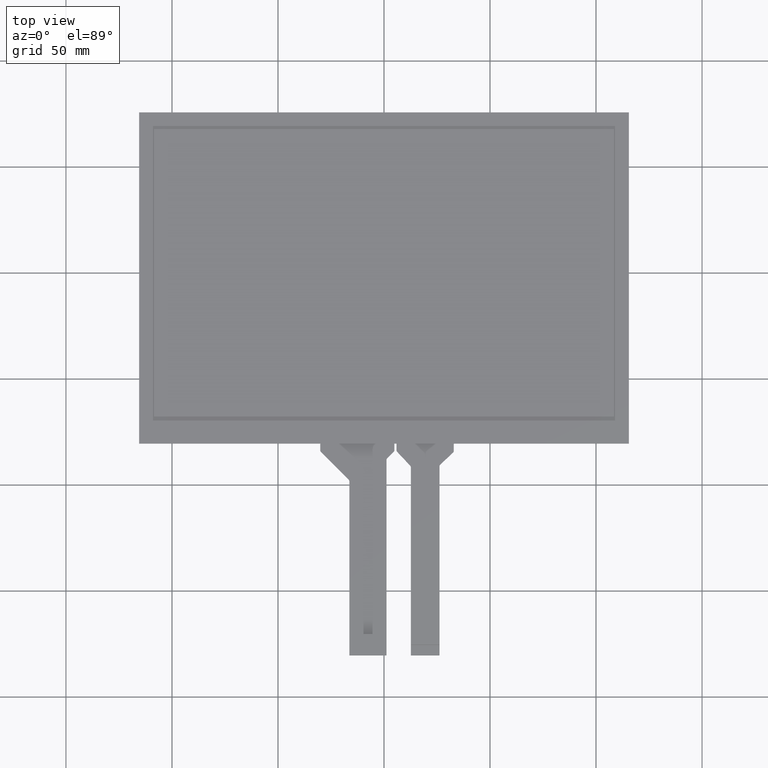
[diagram: clean part render]
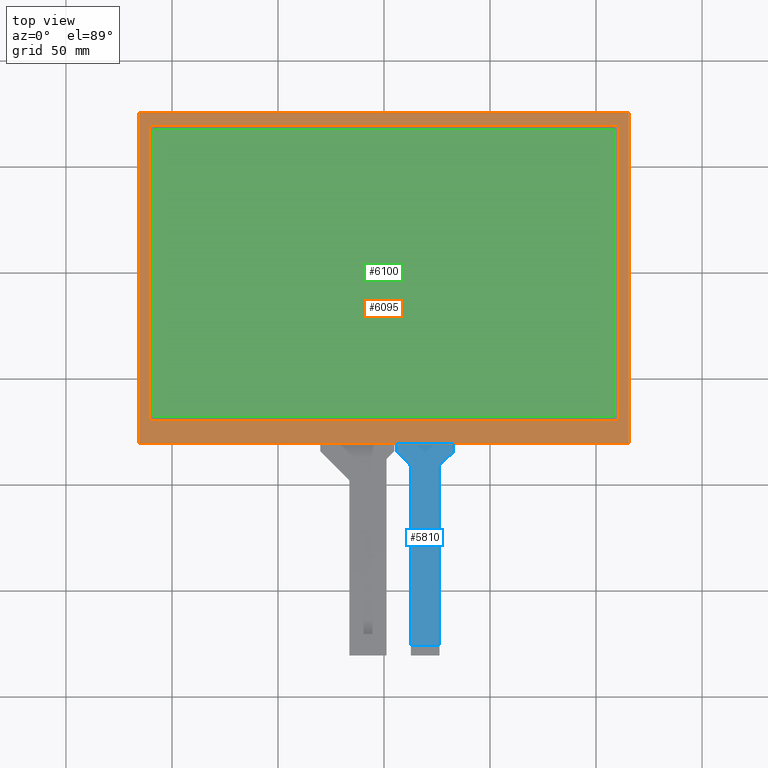
[diagram: same view with three faces highlighted in distinct colors, each labeled with its STEP entity id]
A machine part, top view with three faces highlighted in distinct colors.
Their STEP definitions:

[orange] entity #6095 — the highlighted planar face has unit normal (0, 0, 1).
#47=FACE_BOUND('',#915,.T.);
#325=PLANE('',#6433);
#619=FACE_OUTER_BOUND('',#914,.T.);
#914=EDGE_LOOP('',(#5756,#5757,#5758,#5759));
#915=EDGE_LOOP('',(#5760,#5761,#5762,#5763));
#1740=LINE('',#9604,#2580);
#1744=LINE('',#9612,#2584);
#1747=LINE('',#9618,#2587);
#1750=LINE('',#9623,#2590);
#1752=LINE('',#9629,#2592);
#1753=LINE('',#9631,#2593);
#1754=LINE('',#9633,#2594);
#1755=LINE('',#9634,#2595);
#2580=VECTOR('',#7872,10.);
#2584=VECTOR('',#7878,10.);
#2587=VECTOR('',#7883,10.);
#2590=VECTOR('',#7888,10.);
#2592=VECTOR('',#7894,10.);
#2593=VECTOR('',#7895,10.);
#2594=VECTOR('',#7896,10.);
#2595=VECTOR('',#7897,10.);
#3188=VERTEX_POINT('',#9602);
#3189=VERTEX_POINT('',#9603);
#3192=VERTEX_POINT('',#9611);
#3194=VERTEX_POINT('',#9617);
#3196=VERTEX_POINT('',#9627);
#3197=VERTEX_POINT('',#9628);
#3198=VERTEX_POINT('',#9630);
#3199=VERTEX_POINT('',#9632);
#4044=EDGE_CURVE('',#3188,#3189,#1740,.T.);
#4048=EDGE_CURVE('',#3192,#3188,#1744,.T.);
#4051=EDGE_CURVE('',#3194,#3192,#1747,.T.);
#4054=EDGE_CURVE('',#3189,#3194,#1750,.T.);
#4056=EDGE_CURVE('',#3196,#3197,#1752,.T.);
#4057=EDGE_CURVE('',#3197,#3198,#1753,.T.);
#4058=EDGE_CURVE('',#3198,#3199,#1754,.T.);
#4059=EDGE_CURVE('',#3199,#3196,#1755,.T.);
#5756=ORIENTED_EDGE('',*,*,#4056,.T.);
#5757=ORIENTED_EDGE('',*,*,#4057,.T.);
#5758=ORIENTED_EDGE('',*,*,#4058,.T.);
#5759=ORIENTED_EDGE('',*,*,#4059,.T.);
#5760=ORIENTED_EDGE('',*,*,#4044,.T.);
#5761=ORIENTED_EDGE('',*,*,#4054,.T.);
#5762=ORIENTED_EDGE('',*,*,#4051,.T.);
#5763=ORIENTED_EDGE('',*,*,#4048,.T.);
#6095=ADVANCED_FACE('',(#619,#47),#325,.T.);
#6433=AXIS2_PLACEMENT_3D('',#9626,#7892,#7893);
#7872=DIRECTION('',(-2.54492383868231E-16,1.,0.));
#7878=DIRECTION('',(-1.,-1.60756275058846E-16,0.));
#7883=DIRECTION('',(-1.27246191934115E-16,-1.,0.));
#7888=DIRECTION('',(1.,4.01890687647115E-17,0.));
#7892=DIRECTION('center_axis',(0.,0.,1.));
#7893=DIRECTION('ref_axis',(1.,0.,0.));
#7894=DIRECTION('',(-1.,0.,0.));
#7895=DIRECTION('',(2.27446458309891E-16,-1.,0.));
#7896=DIRECTION('',(1.,1.53797128952403E-16,0.));
#7897=DIRECTION('',(0.,1.,0.));
#9602=CARTESIAN_POINT('',(-110.5,-69.8,0.));
#9603=CARTESIAN_POINT('',(-110.5,69.8,0.));
#9604=CARTESIAN_POINT('',(-110.5,-36.1,0.));
#9611=CARTESIAN_POINT('',(110.5,-69.8,0.));
#9612=CARTESIAN_POINT('',(55.25,-69.8,0.));
#9617=CARTESIAN_POINT('',(110.5,69.8000000000001,0.));
#9618=CARTESIAN_POINT('',(110.5,33.7,0.));
#9623=CARTESIAN_POINT('',(-55.25,69.8,0.));
#9626=CARTESIAN_POINT('Origin',(-1.77635683940025E-14,-2.39999999999996,
0.));
#9627=CARTESIAN_POINT('',(115.5,75.7000000000001,0.));
#9628=CARTESIAN_POINT('',(-115.5,75.7000000000001,0.));
#9629=CARTESIAN_POINT('',(115.5,75.7000000000001,0.));
#9630=CARTESIAN_POINT('',(-115.5,-80.5,0.));
#9631=CARTESIAN_POINT('',(-115.5,75.7000000000001,0.));
#9632=CARTESIAN_POINT('',(115.5,-80.4999999999999,0.));
#9633=CARTESIAN_POINT('',(-115.5,-80.5,0.));
#9634=CARTESIAN_POINT('',(115.5,-80.4999999999999,0.));

[blue] entity #5810 — the highlighted planar face has unit normal (0, 0, 1).
#51=PLANE('',#6126);
#334=FACE_OUTER_BOUND('',#628,.T.);
#628=EDGE_LOOP('',(#4076,#4077,#4078,#4079,#4080,#4081,#4082,#4083,#4084,
#4085,#4086,#4087));
#926=LINE('',#7930,#1766);
#929=LINE('',#7936,#1769);
#930=LINE('',#7938,#1770);
#931=LINE('',#7940,#1771);
#932=LINE('',#7944,#1772);
#933=LINE('',#7948,#1773);
#934=LINE('',#7950,#1774);
#935=LINE('',#7952,#1775);
#1766=VECTOR('',#6452,10.);
#1769=VECTOR('',#6457,10.);
#1770=VECTOR('',#6458,10.);
#1771=VECTOR('',#6459,10.);
#1772=VECTOR('',#6462,10.);
#1773=VECTOR('',#6465,10.);
#1774=VECTOR('',#6466,10.);
#1775=VECTOR('',#6467,10.);
#2605=CIRCLE('',#6124,1.);
#2606=CIRCLE('',#6127,1.);
#2607=CIRCLE('',#6128,1.);
#2608=CIRCLE('',#6129,1.);
#2630=VERTEX_POINT('',#7923);
#2631=VERTEX_POINT('',#7925);
#2632=VERTEX_POINT('',#7929);
#2634=VERTEX_POINT('',#7935);
#2635=VERTEX_POINT('',#7937);
#2636=VERTEX_POINT('',#7939);
#2637=VERTEX_POINT('',#7941);
#2638=VERTEX_POINT('',#7943);
#2639=VERTEX_POINT('',#7945);
#2640=VERTEX_POINT('',#7947);
#2641=VERTEX_POINT('',#7949);
#2642=VERTEX_POINT('',#7951);
#3206=EDGE_CURVE('',#2630,#2631,#2605,.T.);
#3208=EDGE_CURVE('',#2632,#2631,#926,.T.);
#3211=EDGE_CURVE('',#2630,#2634,#929,.T.);
#3212=EDGE_CURVE('',#2635,#2634,#930,.T.);
#3213=EDGE_CURVE('',#2635,#2636,#931,.T.);
#3214=EDGE_CURVE('',#2637,#2636,#2606,.T.);
#3215=EDGE_CURVE('',#2637,#2638,#932,.T.);
#3216=EDGE_CURVE('',#2639,#2638,#2607,.T.);
#3217=EDGE_CURVE('',#2639,#2640,#933,.T.);
#3218=EDGE_CURVE('',#2640,#2641,#934,.T.);
#3219=EDGE_CURVE('',#2641,#2642,#935,.T.);
#3220=EDGE_CURVE('',#2632,#2642,#2608,.T.);
#4076=ORIENTED_EDGE('',*,*,#3206,.F.);
#4077=ORIENTED_EDGE('',*,*,#3211,.T.);
#4078=ORIENTED_EDGE('',*,*,#3212,.F.);
#4079=ORIENTED_EDGE('',*,*,#3213,.T.);
#4080=ORIENTED_EDGE('',*,*,#3214,.F.);
#4081=ORIENTED_EDGE('',*,*,#3215,.T.);
#4082=ORIENTED_EDGE('',*,*,#3216,.F.);
#4083=ORIENTED_EDGE('',*,*,#3217,.T.);
#4084=ORIENTED_EDGE('',*,*,#3218,.T.);
#4085=ORIENTED_EDGE('',*,*,#3219,.T.);
#4086=ORIENTED_EDGE('',*,*,#3220,.F.);
#4087=ORIENTED_EDGE('',*,*,#3208,.T.);
#5810=ADVANCED_FACE('',(#334),#51,.T.);
#6124=AXIS2_PLACEMENT_3D('',#7926,#6447,#6448);
#6126=AXIS2_PLACEMENT_3D('',#7934,#6455,#6456);
#6127=AXIS2_PLACEMENT_3D('',#7942,#6460,#6461);
#6128=AXIS2_PLACEMENT_3D('',#7946,#6463,#6464);
#6129=AXIS2_PLACEMENT_3D('',#7953,#6468,#6469);
#6447=DIRECTION('center_axis',(0.,0.,-1.));
#6448=DIRECTION('ref_axis',(0.917934156179117,-0.396732762599376,0.));
#6452=DIRECTION('',(0.728349107330528,0.685206230160543,0.));
#6455=DIRECTION('center_axis',(0.,0.,1.));
#6456=DIRECTION('ref_axis',(1.,0.,0.));
#6457=DIRECTION('',(0.,1.,0.));
#6458=DIRECTION('',(1.,1.53797128952403E-16,0.));
#6459=DIRECTION('',(0.,-1.,0.));
#6460=DIRECTION('center_axis',(0.,0.,-1.));
#6461=DIRECTION('ref_axis',(-0.929609893269898,-0.36854503976411,0.));
#6462=DIRECTION('',(0.68520623016054,-0.728349107330531,0.));
#6463=DIRECTION('center_axis',(0.,0.,1.));
#6464=DIRECTION('ref_axis',(0.929609893269891,0.368545039764127,0.));
#6465=DIRECTION('',(7.46577566930755E-17,-1.,0.));
#6466=DIRECTION('',(1.,0.,0.));
#6467=DIRECTION('',(-9.9016546231898E-17,1.,0.));
#6468=DIRECTION('center_axis',(0.,0.,1.));
#6469=DIRECTION('ref_axis',(-0.917934156179124,0.396732762599359,0.));
#7923=CARTESIAN_POINT('',(32.91,-84.0176263089983,-0.2));
#7925=CARTESIAN_POINT('',(32.5952062301605,-84.7459754163288,-0.2));
#7926=CARTESIAN_POINT('Origin',(31.91,-84.0176263089983,-0.2));
#7929=CARTESIAN_POINT('',(26.4747937698394,-90.5038526578274,-0.2));
#7930=CARTESIAN_POINT('',(26.16,-90.8,-0.2));
#7934=CARTESIAN_POINT('Origin',(19.41,-130.5,-0.2));
#7935=CARTESIAN_POINT('',(32.91,-80.5,-0.2));
#7936=CARTESIAN_POINT('',(32.91,-84.4498280741562,-0.2));
#7937=CARTESIAN_POINT('',(5.90999999999997,-80.5,-0.2));
#7938=CARTESIAN_POINT('',(67.455,-80.4999999999999,-0.2));
#7939=CARTESIAN_POINT('',(5.90999999999997,-83.7035487117421,-0.2));
#7940=CARTESIAN_POINT('',(5.90999999999997,-80.5,-0.2));
#7941=CARTESIAN_POINT('',(6.18165089266944,-84.3887549419026,-0.2));
#7942=CARTESIAN_POINT('Origin',(6.90999999999997,-83.7035487117421,-0.2));
#7943=CARTESIAN_POINT('',(12.3883491073305,-90.986247645755,-0.2));
#7944=CARTESIAN_POINT('',(5.90999999999997,-84.0999999999999,-0.2));
#7945=CARTESIAN_POINT('',(12.66,-91.6714538759156,-0.2));
#7946=CARTESIAN_POINT('Origin',(11.66,-91.6714538759156,-0.2));
#7947=CARTESIAN_POINT('',(12.66,-175.5,-0.2));
#7948=CARTESIAN_POINT('',(12.66,-91.2750025876577,-0.2));
#7949=CARTESIAN_POINT('',(26.16,-175.5,-0.2));
#7950=CARTESIAN_POINT('',(16.035,-175.5,-0.2));
#7951=CARTESIAN_POINT('',(26.16,-91.2322017651579,-0.2));
#7952=CARTESIAN_POINT('',(26.16,-180.5,-0.2));
#7953=CARTESIAN_POINT('Origin',(27.16,-91.2322017651579,-0.2));

[green] entity #6100 — the highlighted planar face has unit normal (0, 0, 1).
#330=PLANE('',#6438);
#624=FACE_OUTER_BOUND('',#922,.T.);
#922=EDGE_LOOP('',(#5788,#5789,#5790,#5791));
#1728=LINE('',#9580,#2568);
#1732=LINE('',#9588,#2572);
#1735=LINE('',#9594,#2575);
#1738=LINE('',#9599,#2578);
#2568=VECTOR('',#7852,10.);
#2572=VECTOR('',#7858,10.);
#2575=VECTOR('',#7863,10.);
#2578=VECTOR('',#7868,10.);
#3180=VERTEX_POINT('',#9578);
#3181=VERTEX_POINT('',#9579);
#3184=VERTEX_POINT('',#9587);
#3186=VERTEX_POINT('',#9593);
#4032=EDGE_CURVE('',#3180,#3181,#1728,.T.);
#4036=EDGE_CURVE('',#3184,#3180,#1732,.T.);
#4039=EDGE_CURVE('',#3186,#3184,#1735,.T.);
#4042=EDGE_CURVE('',#3181,#3186,#1738,.T.);
#5788=ORIENTED_EDGE('',*,*,#4032,.T.);
#5789=ORIENTED_EDGE('',*,*,#4042,.T.);
#5790=ORIENTED_EDGE('',*,*,#4039,.T.);
#5791=ORIENTED_EDGE('',*,*,#4036,.T.);
#6100=ADVANCED_FACE('',(#624),#330,.T.);
#6438=AXIS2_PLACEMENT_3D('',#9651,#7914,#7915);
#7852=DIRECTION('',(1.,0.,0.));
#7858=DIRECTION('',(0.,-1.,0.));
#7863=DIRECTION('',(-1.,0.,0.));
#7868=DIRECTION('',(0.,1.,0.));
#7914=DIRECTION('center_axis',(0.,0.,1.));
#7915=DIRECTION('ref_axis',(1.,0.,0.));
#9578=CARTESIAN_POINT('',(-108.48,-67.8,0.));
#9579=CARTESIAN_POINT('',(108.48,-67.8,0.));
#9580=CARTESIAN_POINT('',(-54.24,-67.8,0.));
#9587=CARTESIAN_POINT('',(-108.48,67.8,0.));
#9588=CARTESIAN_POINT('',(-108.48,32.7,0.));
#9593=CARTESIAN_POINT('',(108.48,67.8,0.));
#9594=CARTESIAN_POINT('',(54.24,67.8,0.));
#9599=CARTESIAN_POINT('',(108.48,-35.1,0.));
#9651=CARTESIAN_POINT('Origin',(-1.77635683940025E-14,-2.39999999999996,
0.));